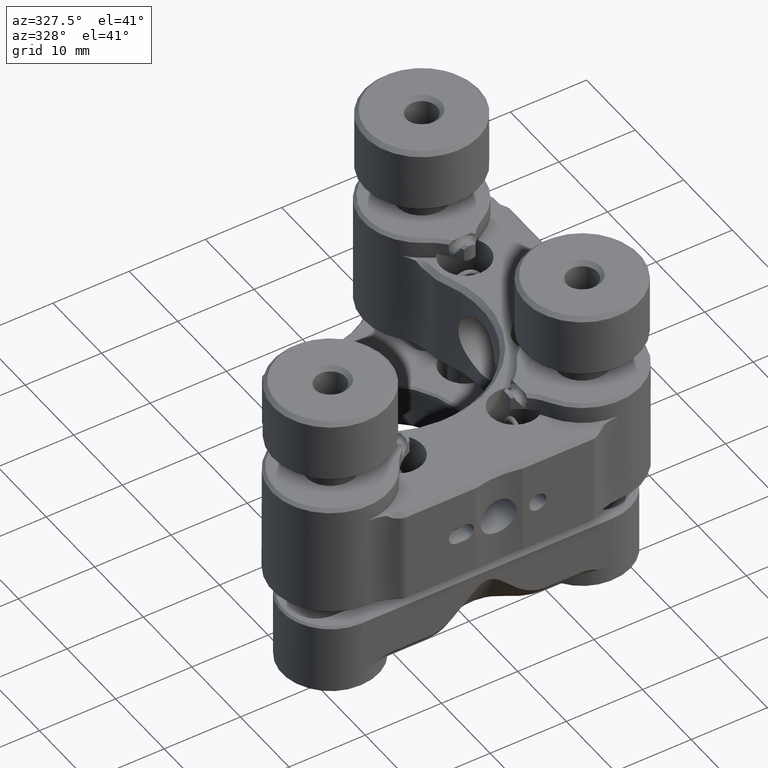
[diagram: clean part render]
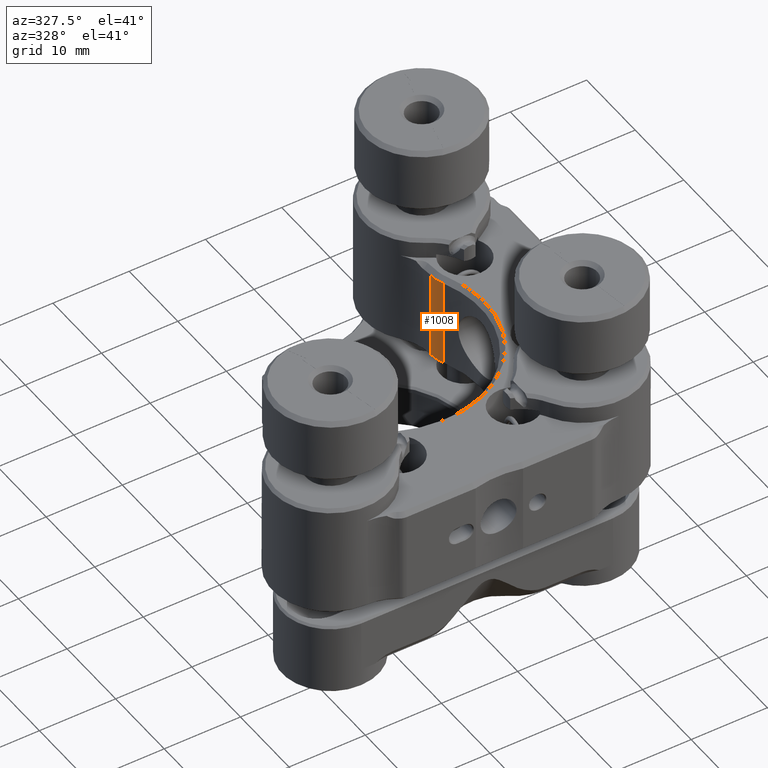
[diagram: same view with one face highlighted and labeled with its STEP entity id]
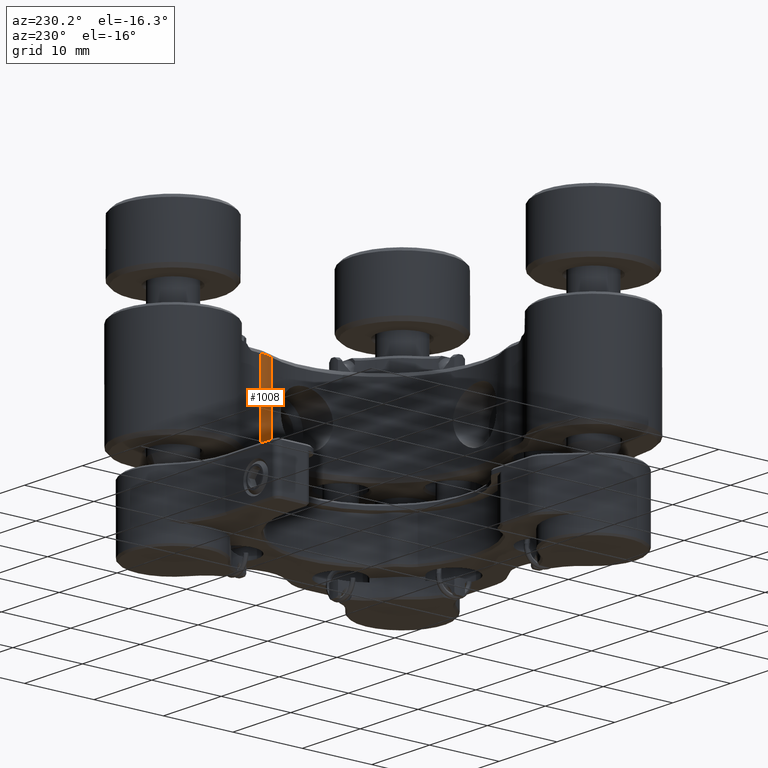
[diagram: same view with one face highlighted and labeled with its STEP entity id]
A machine part, auxiliary view. The second image highlights one B-rep face of the part: STEP entity #1008.
A second angle (auxiliary view) of the same face is appended — the face is thin or edge-on in the first view.
In plain terms, the highlighted cylindrical surface (partial cylindrical patch) has radius 4.4676 mm, axis along (0, 0, -1).
Its self-contained STEP definition (entity closure, byte-faithful):
#695 = VERTEX_POINT ( 'NONE', #51698 ) ;
#1008 = ADVANCED_FACE ( 'NONE', ( #60387 ), #26502, .T. ) ;
#1970 = DIRECTION ( 'NONE',  ( 9.124743228315136138E-15, -1.000000000000000000, 0.000000000000000000 ) ) ;
#3578 = CARTESIAN_POINT ( 'NONE',  ( -7.896739122827286295, 34.37122469427606575, 37.61121635124558793 ) ) ;
#3690 = ORIENTED_EDGE ( 'NONE', *, *, #58222, .T. ) ;
#5595 = CARTESIAN_POINT ( 'NONE',  ( -8.306480520951879498, 36.24620216945364604, 37.61443626234252235 ) ) ;
#6528 = CARTESIAN_POINT ( 'NONE',  ( -8.237181229057483733, 35.44386796973054032, 37.61321619589431009 ) ) ;
#10118 = CARTESIAN_POINT ( 'NONE',  ( -7.896739122827286295, 34.37122469427606575, 37.61121635124558793 ) ) ;
#15030 = DIRECTION ( 'NONE',  ( 2.776129051972644027E-17, 2.760323471275298556E-17, -1.000000000000000000 ) ) ;
#15591 = CARTESIAN_POINT ( 'NONE',  ( -8.022379494940716782, 34.66811758022485179, 37.61405479666267127 ) ) ;
#16819 = DIRECTION ( 'NONE',  ( 2.776129051972644027E-17, 2.760323471275298556E-17, -1.000000000000000000 ) ) ;
#17815 = VERTEX_POINT ( 'NONE', #45747 ) ;
#18706 = AXIS2_PLACEMENT_3D ( 'NONE', #42977, #37806, #62650 ) ;
#19555 = LINE ( 'NONE', #39235, #23818 ) ;
#20864 = AXIS2_PLACEMENT_3D ( 'NONE', #45861, #16819, #1970 ) ;
#21013 = VECTOR ( 'NONE', #35093, 1000.000000000000000 ) ;
#23818 = VECTOR ( 'NONE', #15030, 1000.000000000000000 ) ;
#24342 = ORIENTED_EDGE ( 'NONE', *, *, #59411, .T. ) ;
#24958 = CARTESIAN_POINT ( 'NONE',  ( -8.306556580064572870, 36.08475755124204909, 37.61209205262779420 ) ) ;
#25273 = CARTESIAN_POINT ( 'NONE',  ( -8.124936549162425692, 34.97323424324440566, 37.61338105741516102 ) ) ;
#25866 = B_SPLINE_CURVE_WITH_KNOTS ( 'NONE', 3,
 ( #10118, #49791, #15591, #25273, #60111, #6528, #29801, #60431, #24958, #5595 ),
 .UNSPECIFIED., .F., .F.,
 ( 4, 2, 2, 2, 4 ),
 ( 0.000000000000000000, 0.0004826836125585542547, 0.0009653672251171085093, 0.001448050837675662764, 0.001930734450234217019 ),
 .UNSPECIFIED. ) ;
#26502 = CYLINDRICAL_SURFACE ( 'NONE', #20864, 4.467632750360945870 ) ;
#26943 = CIRCLE ( 'NONE', #18706, 4.467632750360945870 ) ;
#28381 = EDGE_LOOP ( 'NONE', ( #24342, #37015, #3690, #43140 ) ) ;
#29511 = EDGE_CURVE ( 'NONE', #42505, #695, #25866, .T. ) ;
#29801 = CARTESIAN_POINT ( 'NONE',  ( -8.263229649832984691, 35.60333052414145527, 37.61336528593790263 ) ) ;
#35093 = DIRECTION ( 'NONE',  ( -2.776129051972644027E-17, -2.760323471275298556E-17, 1.000000000000000000 ) ) ;
#37015 = ORIENTED_EDGE ( 'NONE', *, *, #61672, .T. ) ;
#37806 = DIRECTION ( 'NONE',  ( -2.776129051972644027E-17, -2.760323471275298556E-17, 1.000000000000000000 ) ) ;
#39235 = CARTESIAN_POINT ( 'NONE',  ( -8.306480520951879498, 36.24620216945364604, 40.74170909685329178 ) ) ;
#42505 = VERTEX_POINT ( 'NONE', #3578 ) ;
#42977 = CARTESIAN_POINT ( 'NONE',  ( -3.838848266386637231, 36.24409739724860202, 26.00970909685333154 ) ) ;
#43140 = ORIENTED_EDGE ( 'NONE', *, *, #29511, .T. ) ;
#45747 = CARTESIAN_POINT ( 'NONE',  ( -8.306480520986848859, 36.24620216945363183, 26.00970909692768984 ) ) ;
#45861 = CARTESIAN_POINT ( 'NONE',  ( -3.838848266386639008, 36.24409739724860202, 40.74170909685329178 ) ) ;
#49791 = CARTESIAN_POINT ( 'NONE',  ( -7.962949870626188087, 34.51852711235647320, 37.61213486990898502 ) ) ;
#51535 = VERTEX_POINT ( 'NONE', #58750 ) ;
#51698 = CARTESIAN_POINT ( 'NONE',  ( -8.306480520951879498, 36.24620216945364604, 37.61443626234252235 ) ) ;
#55094 = CARTESIAN_POINT ( 'NONE',  ( -7.895277348578411569, 34.37189935931391460, 40.74170909685329178 ) ) ;
#58222 = EDGE_CURVE ( 'NONE', #51535, #42505, #59936, .T. ) ;
#58750 = CARTESIAN_POINT ( 'NONE',  ( -7.895277348600213685, 34.37189935930044982, 26.00970909687101340 ) ) ;
#59411 = EDGE_CURVE ( 'NONE', #695, #17815, #19555, .T. ) ;
#59936 = LINE ( 'NONE', #55094, #21013 ) ;
#60111 = CARTESIAN_POINT ( 'NONE',  ( -8.168114602678377523, 35.12912969518997386, 37.61321462790237291 ) ) ;
#60387 = FACE_OUTER_BOUND ( 'NONE', #28381, .T. ) ;
#60431 = CARTESIAN_POINT ( 'NONE',  ( -8.297906557913403702, 35.92389126891166029, 37.61407108959236467 ) ) ;
#61672 = EDGE_CURVE ( 'NONE', #17815, #51535, #26943, .T. ) ;
#62650 = DIRECTION ( 'NONE',  ( 3.785797722386067306E-15, -1.000000000000000000, 0.000000000000000000 ) ) ;